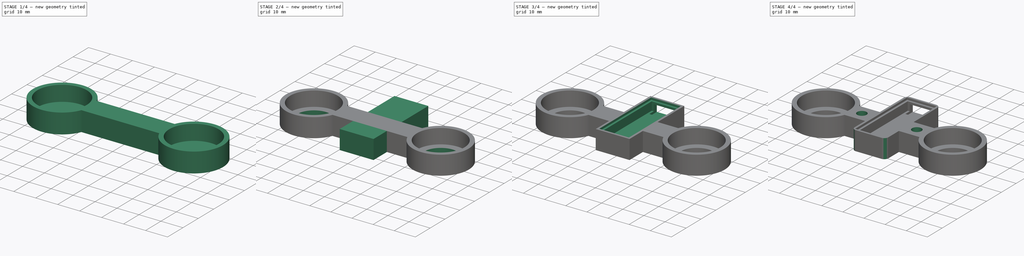
[diagram: build sequence overview — one tinted view per stage of 4, left to right]
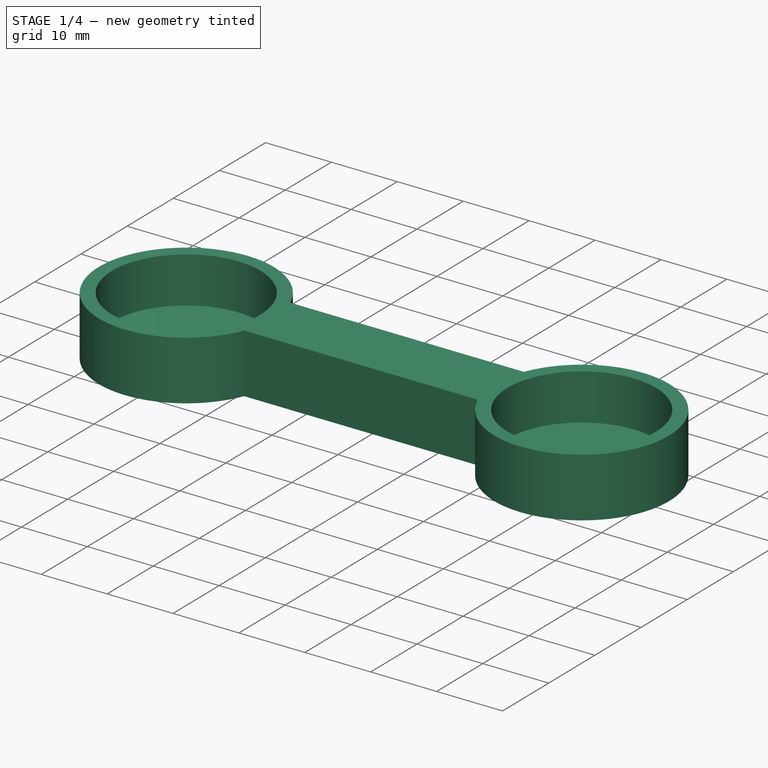
[diagram: stage 1 of 4 — iso view after this stage's code; geometry added in this stage tinted green]
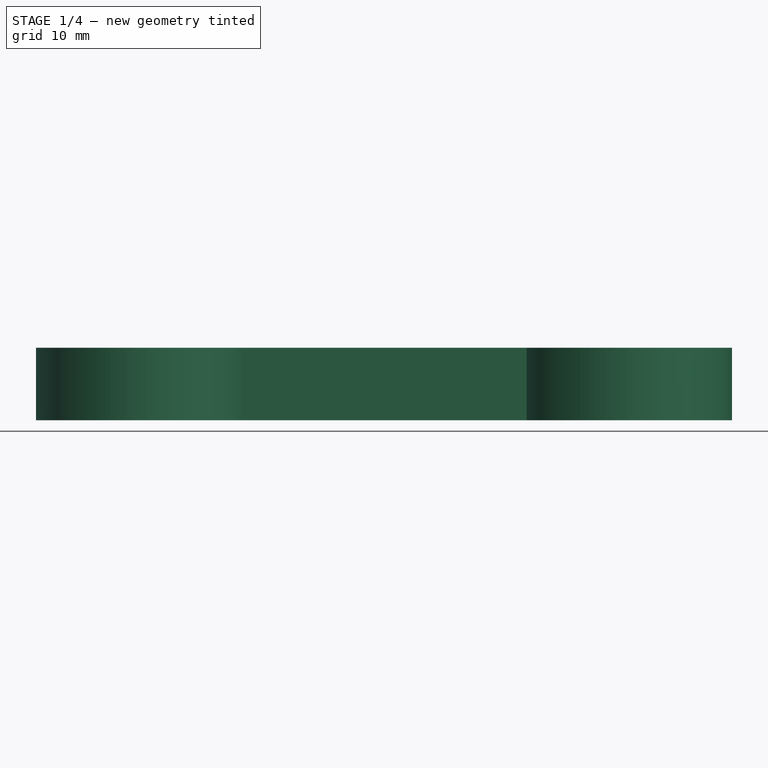
[diagram: stage 1 of 4 — front view after this stage's code; geometry added in this stage tinted green]
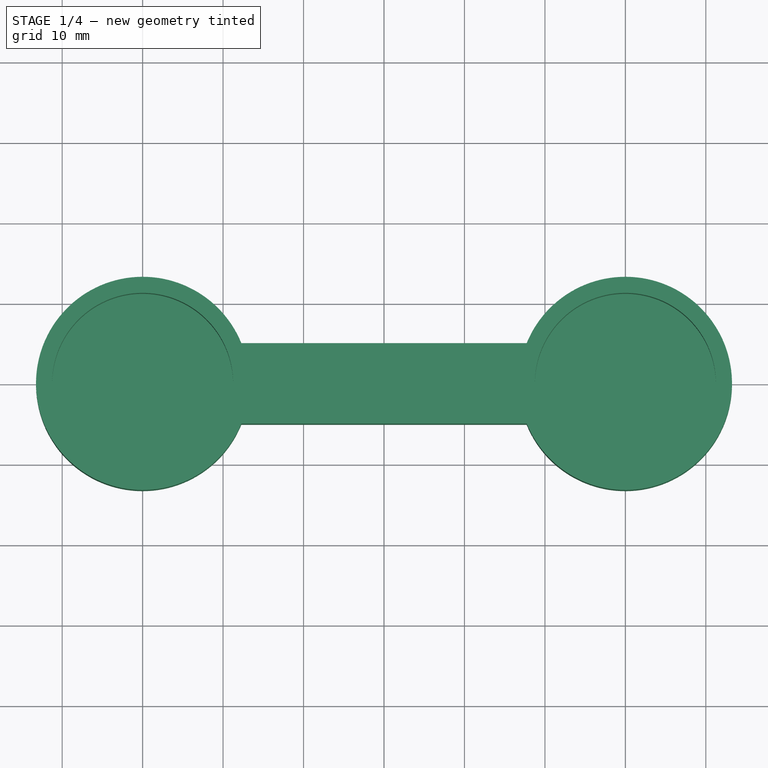
[diagram: stage 1 of 4 — top view after this stage's code; geometry added in this stage tinted green]
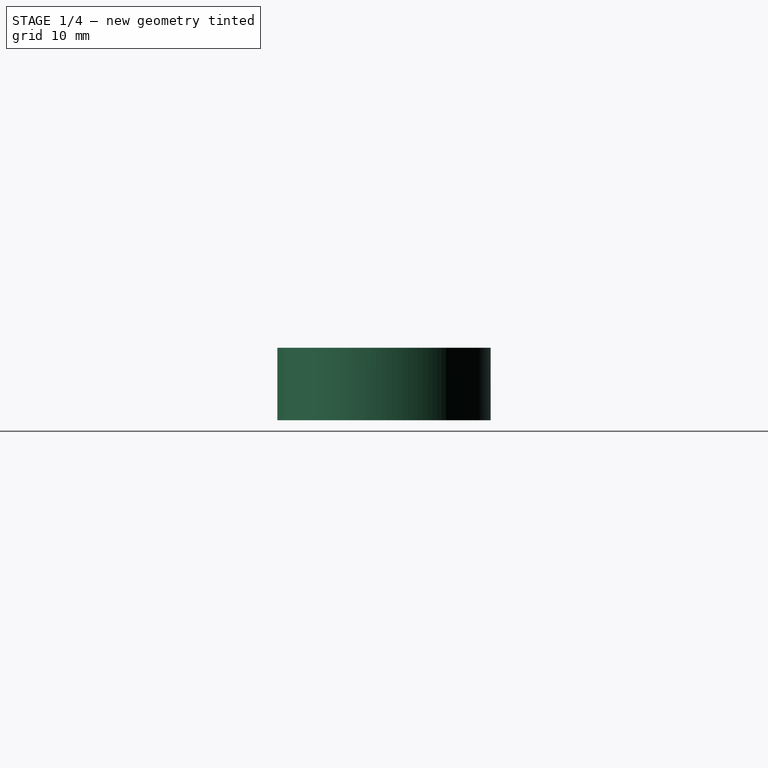
[diagram: stage 1 of 4 — right view after this stage's code; geometry added in this stage tinted green]
FCSTD DOCUMENT  (FreeCAD 1.0R38641 +678 (Git))
Label: servo-cover
License: All rights reserved
LicenseURL: https://en.wikipedia.org/wiki/All_rights_reserved
objects: Sketcher::SketchObject×8, PartDesign::Pocket×5, PartDesign::Pad×2, PartDesign::Hole×1, PartDesign::Fillet×1, PartDesign::Body×1
note: 44 computed .brp shape members not serialized (recipe doc carries the construction recipe); baked Part::Feature solids carry a one-line shape summary decoded from their .brp

FEATURE [Sketcher::SketchObject] Sketch074
  ArcFitTolerance = 0
  AttachmentSupport = -> [XY_Plane010]
  FullyConstrained = true
  MakeInternals = false
  MapMode = 5
  sketch-geometry (4):
    g0: ArcOfCircle CenterX=-0.000782384 CenterY=0 CenterZ=0 NormalX=0 NormalY=0 NormalZ=1 AngleXU=0 Radius=13.25 StartAngle=0.386942 EndAngle=5.89624
    g1: ArcOfCircle CenterX=60 CenterY=-1.33e-14 CenterZ=0 NormalX=0 NormalY=0 NormalZ=1 AngleXU=0 Radius=13.25 StartAngle=3.52853 EndAngle=9.03784
    g2: LineSegment StartX=12.2696 StartY=5 StartZ=0 EndX=47.7296 EndY=5 EndZ=0
    g3: LineSegment StartX=12.2696 StartY=-5 StartZ=0 EndX=47.7296 EndY=-5 EndZ=0
  constraints (14):
    c: Diameter(g0) = 26.5
    c: Diameter(g1) = 26.5
    c: Horizontal(g2)
    c: Horizontal(g3)
    c: Coincident(g2,g0)
    c: Coincident(g3,g0)
    c: Coincident(g2,g1)
    c: Coincident(g3,g1)
    c: DistanceX(g2,g2) = 35.46
    c: DistanceX(g3,g3) = 35.46
    c: PointOnObject(g0,g-1)
    c: Distance(g0,g2) = 5
    c: Distance(g0,g3) = 5
    c: DistanceX(g-2,g1) = 60
FEATURE [PartDesign::Pad] Pad028
  Direction = (0,0,1)
  Length = 9
  Length2 = 10
  Profile = -> Sketch074
  ReferenceAxis = -> Sketch074 [N_Axis]
  Suppressed = false
  Type = 0
FEATURE [Sketcher::SketchObject] Sketch075
  ArcFitTolerance = 0
  AttachmentSupport = -> [Pad028]
  FullyConstrained = true
  MakeInternals = false
  MapMode = 5
  Placement = pos=(0,0,9) rot=(0,0,1;0rad)
  sketch-geometry (2):
    g0: Circle CenterX=0 CenterY=0 CenterZ=0 NormalX=0 NormalY=0 NormalZ=1 AngleXU=0 Radius=11.25
    g1: Circle CenterX=60 CenterY=0 CenterZ=0 NormalX=0 NormalY=0 NormalZ=1 AngleXU=0 Radius=11.25
  constraints (5):
    c: Coincident(g0,g-1)
    c: Diameter(g0) = 22.5
    c: PointOnObject(g1,g-1)
    c: Equal(g1,g0)
    c: Distance(g1,g0) = 60
FEATURE [PartDesign::Pocket] Pocket028
  BaseFeature = -> Pad028
  Direction = (0,0,-1)
  Length = 7
  Length2 = 5
  Profile = -> Sketch075
  ReferenceAxis = -> Sketch075 [N_Axis]
  Suppressed = false
  Type = 0
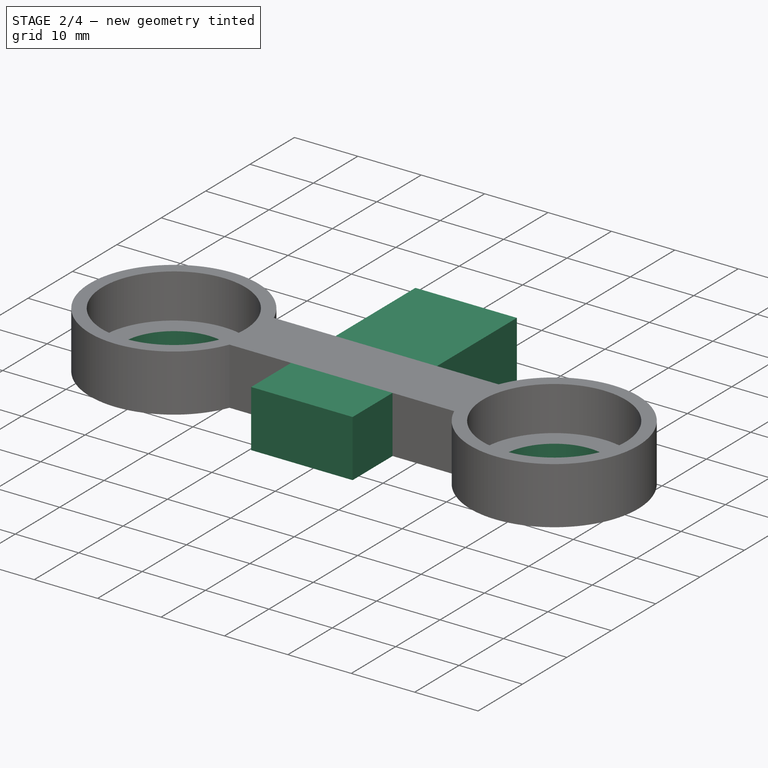
[diagram: stage 2 of 4 — iso view after this stage's code; geometry added in this stage tinted green]
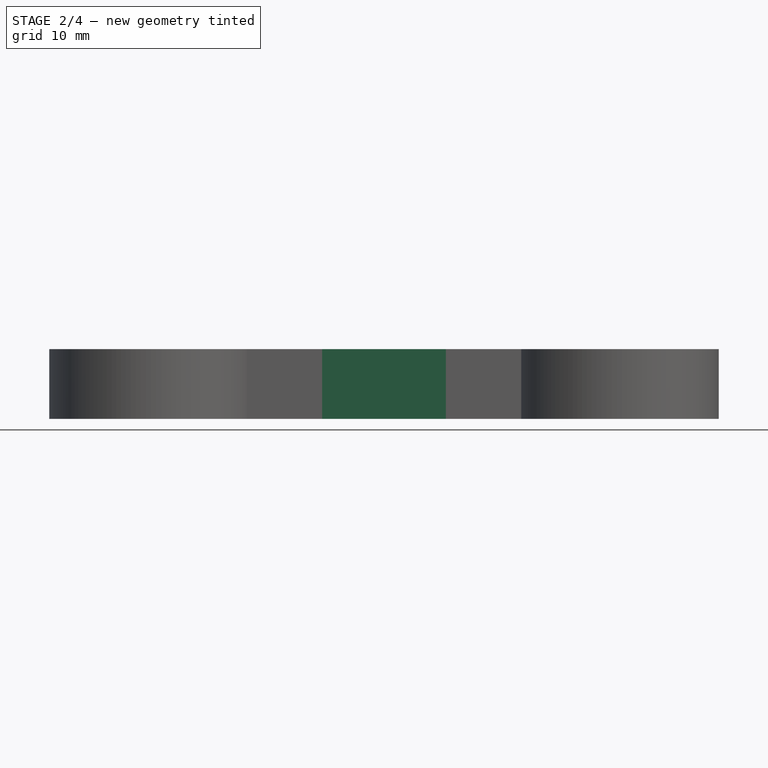
[diagram: stage 2 of 4 — front view after this stage's code; geometry added in this stage tinted green]
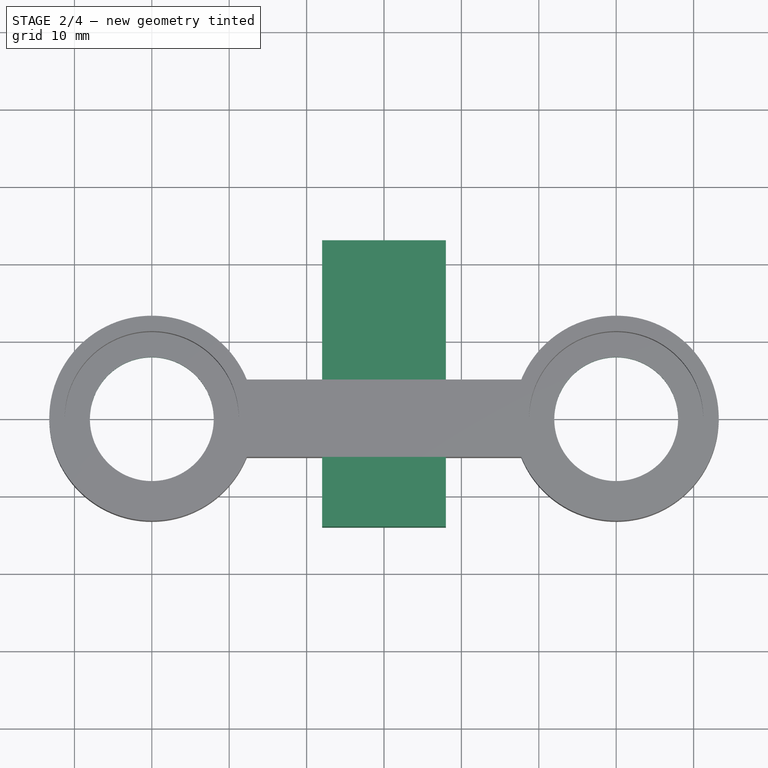
[diagram: stage 2 of 4 — top view after this stage's code; geometry added in this stage tinted green]
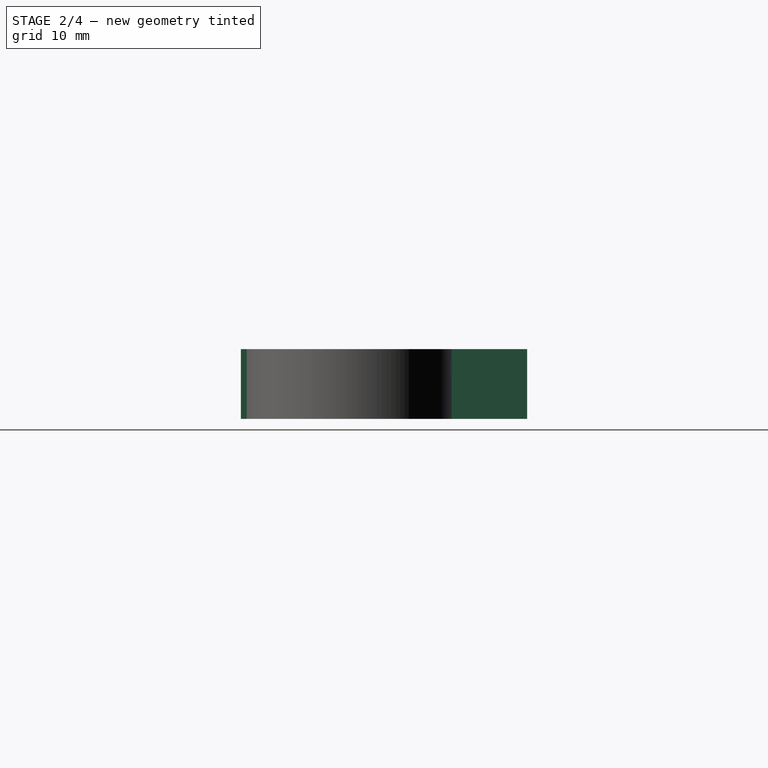
[diagram: stage 2 of 4 — right view after this stage's code; geometry added in this stage tinted green]
FEATURE [Sketcher::SketchObject] Sketch076
  ArcFitTolerance = 0
  AttachmentSupport = -> [Pocket028]
  FullyConstrained = true
  MakeInternals = false
  MapMode = 5
  Placement = pos=(0,0,0) rot=(1,0,0;3.14159rad)
  sketch-geometry (2):
    g0: Circle CenterX=0 CenterY=0 CenterZ=0 NormalX=0 NormalY=0 NormalZ=1 AngleXU=0 Radius=8
    g1: Circle CenterX=60 CenterY=0 CenterZ=0 NormalX=0 NormalY=0 NormalZ=1 AngleXU=0 Radius=8
  constraints (5):
    c: Coincident(g0,g-1)
    c: Diameter(g0) = 16
    c: PointOnObject(g1,g-1)
    c: Equal(g1,g0)
    c: Distance(g0,g1) = 60
FEATURE [PartDesign::Pocket] Pocket029
  BaseFeature = -> Pocket028
  Direction = (0,0,1)
  Length = 5
  Length2 = 5
  Profile = -> Sketch076
  ReferenceAxis = -> Sketch076 [N_Axis]
  Suppressed = false
  Type = 0
FEATURE [Sketcher::SketchObject] Sketch077
  ArcFitTolerance = 0
  AttachmentSupport = -> [Pocket029]
  FullyConstrained = true
  MakeInternals = false
  MapMode = 5
  Placement = pos=(0,0,0) rot=(1,0,0;3.14159rad)
  sketch-geometry (4):
    g0: LineSegment StartX=38 StartY=-23 StartZ=0 EndX=22 EndY=-23 EndZ=0
    g1: LineSegment StartX=22 StartY=-23 StartZ=0 EndX=22 EndY=14 EndZ=0
    g2: LineSegment StartX=22 StartY=14 StartZ=0 EndX=38 EndY=14 EndZ=0
    g3: LineSegment StartX=38 StartY=14 StartZ=0 EndX=38 EndY=-23 EndZ=0
  constraints (12):
    c: Horizontal(g0)
    c: Coincident(g1,g0)
    c: Vertical(g1)
    c: Coincident(g2,g1)
    c: Horizontal(g2)
    c: Coincident(g3,g2)
    c: Coincident(g3,g0)
    c: Vertical(g3)
    c: DistanceX(g0,g0) = 16
    c: Distance(g-1,g1) = 22
    c: DistanceY(g3,g3) = 37
    c: Distance(g-1,g2) = 14
FEATURE [PartDesign::Pad] Pad029
  BaseFeature = -> Pocket029
  Direction = (0,0,-1)
  Length = 9
  Length2 = 10
  Profile = -> Sketch077
  ReferenceAxis = -> Sketch077 [N_Axis]
  Reversed = true
  Suppressed = false
  Type = 0
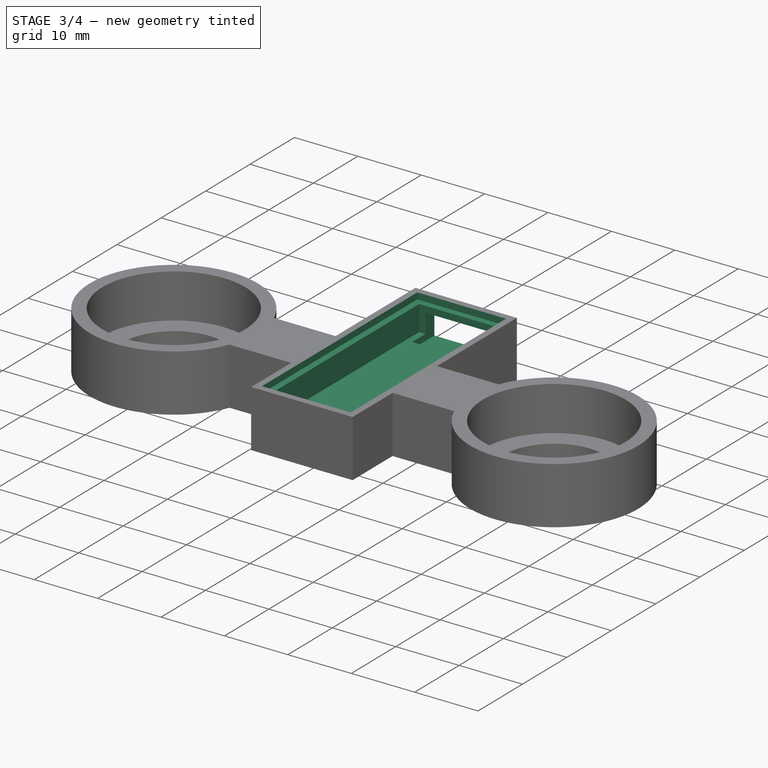
[diagram: stage 3 of 4 — iso view after this stage's code; geometry added in this stage tinted green]
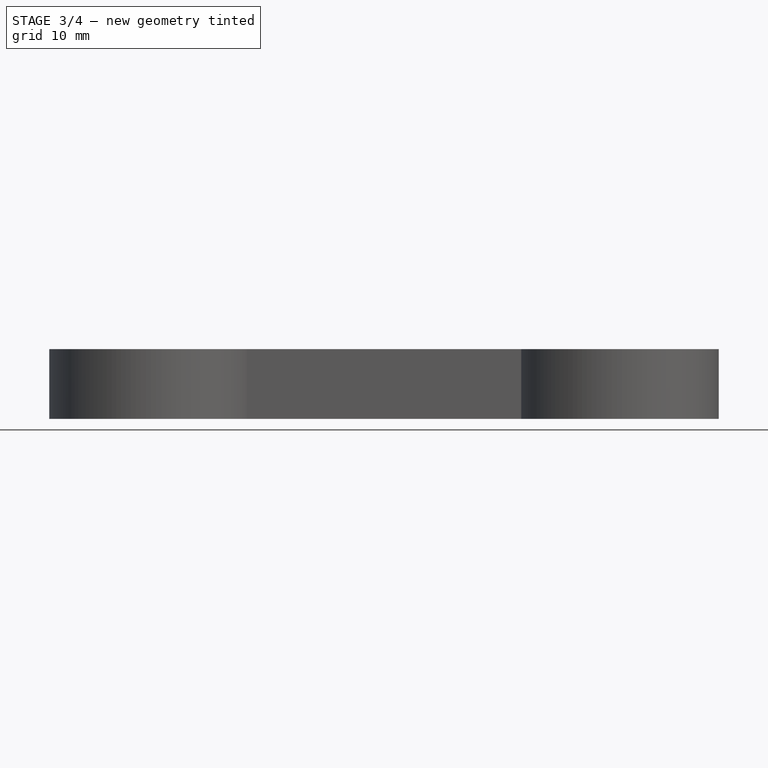
[diagram: stage 3 of 4 — front view after this stage's code; geometry added in this stage tinted green]
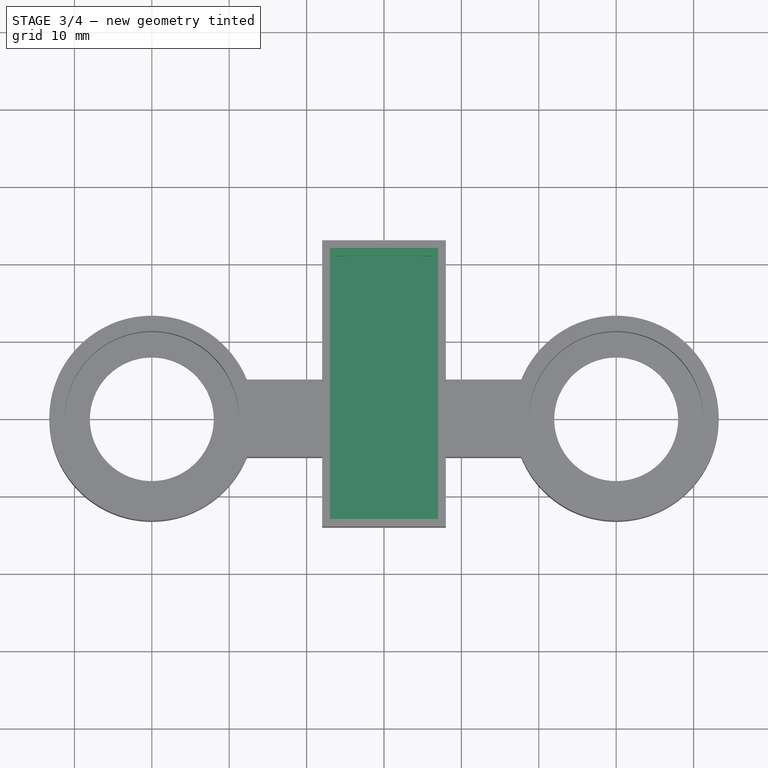
[diagram: stage 3 of 4 — top view after this stage's code; geometry added in this stage tinted green]
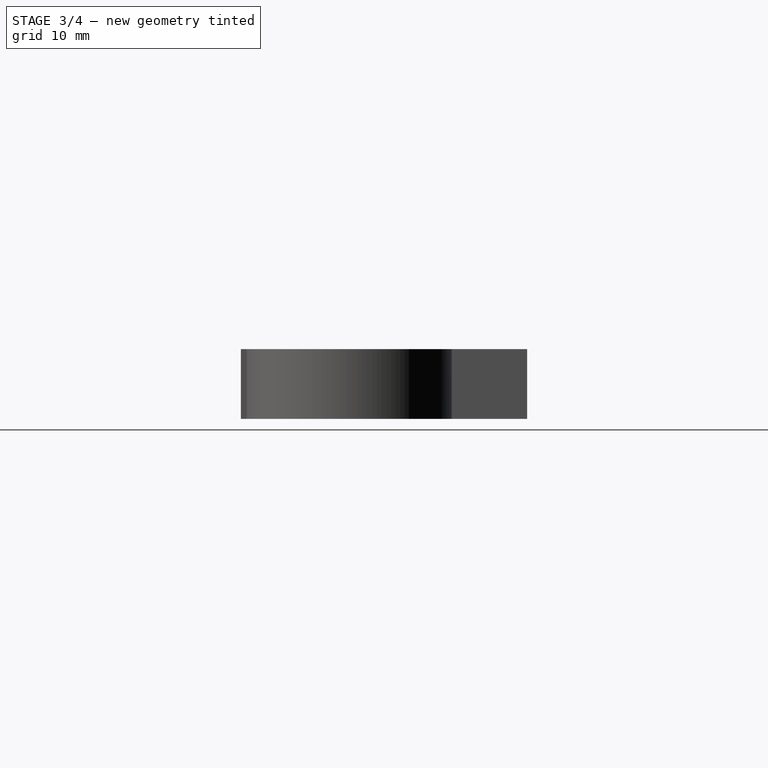
[diagram: stage 3 of 4 — right view after this stage's code; geometry added in this stage tinted green]
FEATURE [Sketcher::SketchObject] Sketch078
  ArcFitTolerance = 0
  AttachmentSupport = -> [Pad029]
  FullyConstrained = true
  MakeInternals = false
  MapMode = 5
  Placement = pos=(0,0,9) rot=(0,0,1;0rad)
  sketch-geometry (4):
    g0: LineSegment StartX=23 StartY=22 StartZ=0 EndX=37 EndY=22 EndZ=0
    g1: LineSegment StartX=37 StartY=22 StartZ=0 EndX=37 EndY=-13 EndZ=0
    g2: LineSegment StartX=37 StartY=-13 StartZ=0 EndX=23 EndY=-13 EndZ=0
    g3: LineSegment StartX=23 StartY=-13 StartZ=0 EndX=23 EndY=22 EndZ=0
  constraints (12):
    c: Coincident(g0,g1)
    c: Coincident(g1,g2)
    c: Coincident(g2,g3)
    c: Coincident(g3,g0)
    c: Horizontal(g0)
    c: Horizontal(g2)
    c: Vertical(g1)
    c: Vertical(g3)
    c: Distance(g-1,g3) = 23
    c: DistanceX(g2,g2) = 14
    c: DistanceY(g1,g1) = 35
    c: Distance(g-1,g0) = 22
FEATURE [PartDesign::Pocket] Pocket030
  BaseFeature = -> Pad029
  Direction = (0,0,-1)
  Length = 1
  Length2 = 5
  Profile = -> Sketch078
  ReferenceAxis = -> Sketch078 [N_Axis]
  Suppressed = false
  Type = 0
FEATURE [Sketcher::SketchObject] Sketch079
  ArcFitTolerance = 0
  AttachmentSupport = -> [Pocket030]
  FullyConstrained = true
  MakeInternals = false
  MapMode = 5
  Placement = pos=(0,0,9) rot=(0,0,1;0rad)
  sketch-geometry (4):
    g0: LineSegment StartX=24 StartY=21 StartZ=0 EndX=36 EndY=21 EndZ=0
    g1: LineSegment StartX=36 StartY=21 StartZ=0 EndX=36 EndY=-12 EndZ=0
    g2: LineSegment StartX=36 StartY=-12 StartZ=0 EndX=24 EndY=-12 EndZ=0
    g3: LineSegment StartX=24 StartY=-12 StartZ=0 EndX=24 EndY=21 EndZ=0
  constraints (12):
    c: Coincident(g0,g1)
    c: Coincident(g1,g2)
    c: Coincident(g2,g3)
    c: Coincident(g3,g0)
    c: Horizontal(g0)
    c: Horizontal(g2)
    c: Vertical(g1)
    c: Vertical(g3)
    c: Distance(g-1,g3) = 24
    c: Distance(g2) = 12
    c: DistanceY(g1,g1) = 33
    c: Distance(g-1,g0) = 21
FEATURE [PartDesign::Pocket] Pocket031
  BaseFeature = -> Pocket030
  Direction = (0,0,-1)
  Length = 5
  Length2 = 5
  Profile = -> Sketch079
  ReferenceAxis = -> Sketch079 [N_Axis]
  Suppressed = false
  Type = 0
FEATURE [Sketcher::SketchObject] Sketch080
  ArcFitTolerance = 0
  AttachmentSupport = -> [Pocket031]
  FullyConstrained = true
  MakeInternals = false
  MapMode = 5
  Placement = pos=(0,23,0) rot=(0,0.707107,0.707107;3.14159rad)
  sketch-geometry (4):
    g0: LineSegment StartX=-35 StartY=7 StartZ=0 EndX=-25 EndY=7 EndZ=0
    g1: LineSegment StartX=-25 StartY=7 StartZ=0 EndX=-25 EndY=3 EndZ=0
    g2: LineSegment StartX=-25 StartY=3 StartZ=0 EndX=-35 EndY=3 EndZ=0
    g3: LineSegment StartX=-35 StartY=3 StartZ=0 EndX=-35 EndY=7 EndZ=0
  constraints (12):
    c: Coincident(g0,g1)
    c: Coincident(g1,g2)
    c: Coincident(g2,g3)
    c: Coincident(g3,g0)
    c: Horizontal(g0)
    c: Horizontal(g2)
    c: Vertical(g1)
    c: Vertical(g3)
    c: DistanceX(g0,g0) = 10
    c: DistanceY(g1,g1) = 4
    c: Distance(g-1,g1) = 25
    c: Distance(g-1,g2) = 3
FEATURE [PartDesign::Pocket] Pocket032
  BaseFeature = -> Pocket031
  Direction = (0,-1,2e-16)
  Length = 5
  Length2 = 5
  Profile = -> Sketch080
  ReferenceAxis = -> Sketch080 [N_Axis]
  Suppressed = false
  Type = 0
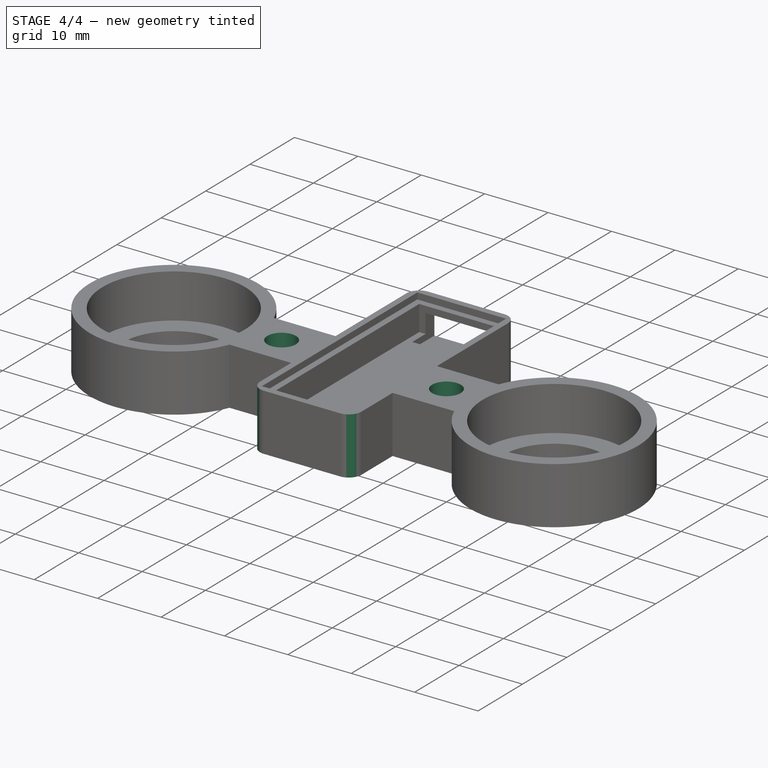
[diagram: stage 4 of 4 — iso view after this stage's code; geometry added in this stage tinted green]
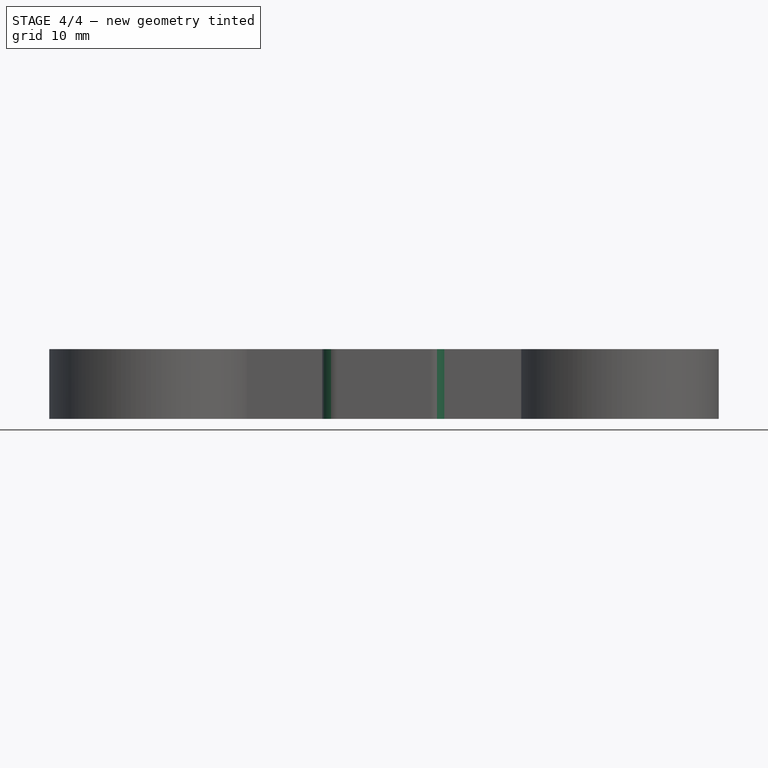
[diagram: stage 4 of 4 — front view after this stage's code; geometry added in this stage tinted green]
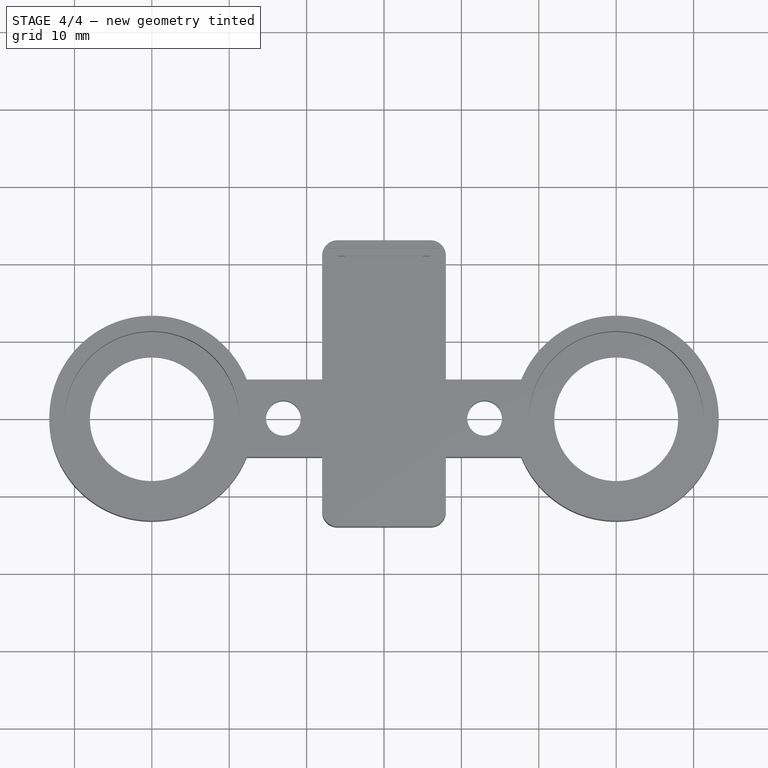
[diagram: stage 4 of 4 — top view after this stage's code; geometry added in this stage tinted green]
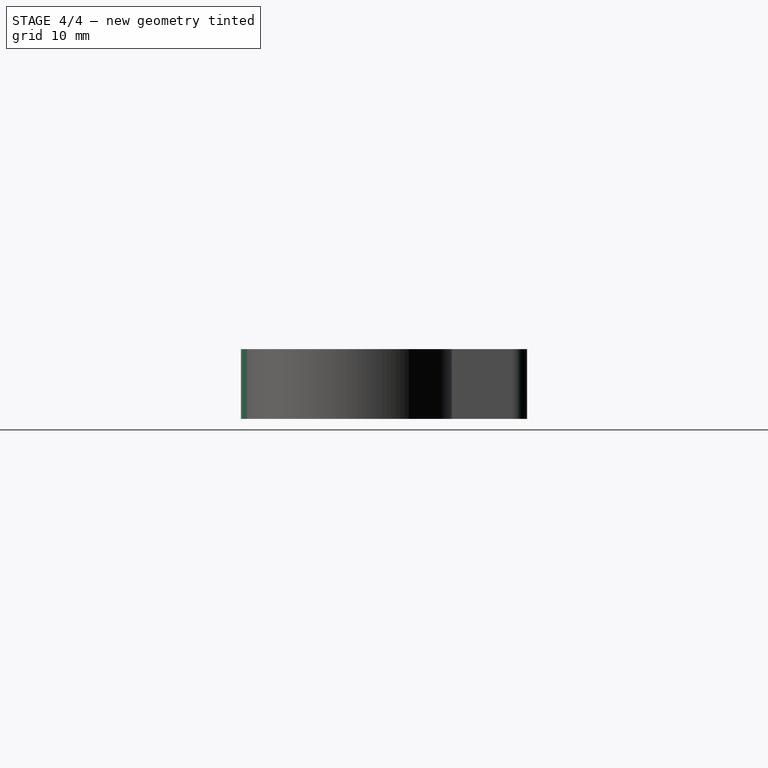
[diagram: stage 4 of 4 — right view after this stage's code; geometry added in this stage tinted green]
FEATURE [Sketcher::SketchObject] Sketch081
  ArcFitTolerance = 0
  AttachmentSupport = -> [Pocket032]
  FullyConstrained = true
  MakeInternals = false
  MapMode = 5
  Placement = pos=(0,0,0) rot=(1,0,0;3.14159rad)
  sketch-geometry (2):
    g0: Circle CenterX=17 CenterY=0 CenterZ=0 NormalX=0 NormalY=0 NormalZ=1 AngleXU=0 Radius=2.25
    g1: Circle CenterX=43 CenterY=0 CenterZ=0 NormalX=0 NormalY=0 NormalZ=1 AngleXU=0 Radius=2.25
  constraints (6):
    c: PointOnObject(g0,g-1)
    c: Diameter(g0) = 4.5
    c: PointOnObject(g1,g-1)
    c: DistanceX(g-2,g0) = 17
    c: Distance(g0,g1) = 26
    c: Equal(g0,g1)
FEATURE [PartDesign::Hole] Hole007
  BaseFeature = -> Pocket032
  CustomThreadClearance = 0
  Depth = 25
  DepthType = 0
  Diameter = 4.5
  DrillForDepth = false
  DrillPoint = 1
  DrillPointAngle = 118
  HoleCutCountersinkAngle = 90
  HoleCutCustomValues = false
  HoleCutDepth = 4
  HoleCutDiameter = 7.5
  HoleCutType = 1
  ModelThread = false
  Profile = -> Sketch081
  Suppressed = false
  Tapered = false
  TaperedAngle = 90
  ThreadClass = 0
  ThreadDepth = 25
  ThreadDepthType = 0
  ThreadDirection = 0
  ThreadFit = 0
  ThreadSize = 0
  ThreadType = 0
  Threaded = false
  UseCustomThreadClearance = false
FEATURE [PartDesign::Fillet] Fillet006
  Base = -> Hole007 [Edge45,Edge19,Edge21,Edge52]
  BaseFeature = -> Hole007
  Radius = 2
  SupportTransform = false
  Suppressed = false
  UseAllEdges = false
FEATURE [PartDesign::Body] Body010  label="servo-cover"
  AllowCompound = false
  Group = -> [Sketch074,Pad028,Sketch075,Pocket028,Sketch076,Pocket029,Sketch077,Pad029,Sketch078,Pocket030,Sketch079,Pocket031,Sketch080,Pocket032,Sketch081,Hole007,Fillet006]
  Origin = -> Origin010
  Placement = pos=(1.2e-14,120,46) rot=(0.707107,-0.707107,0;3.14159rad)
  Tip = -> Fillet006
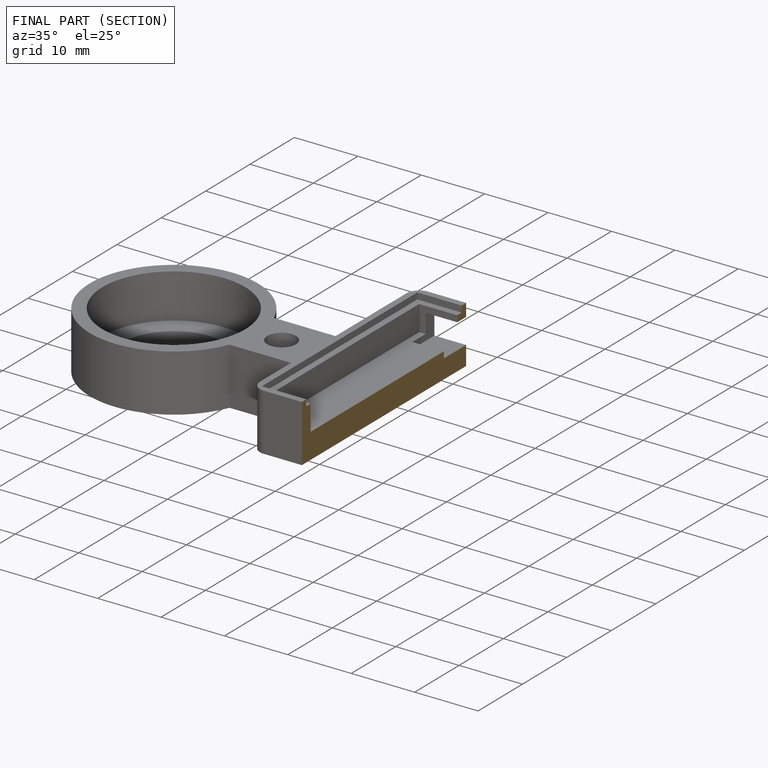
[diagram: finished part — half-section view (interior)]
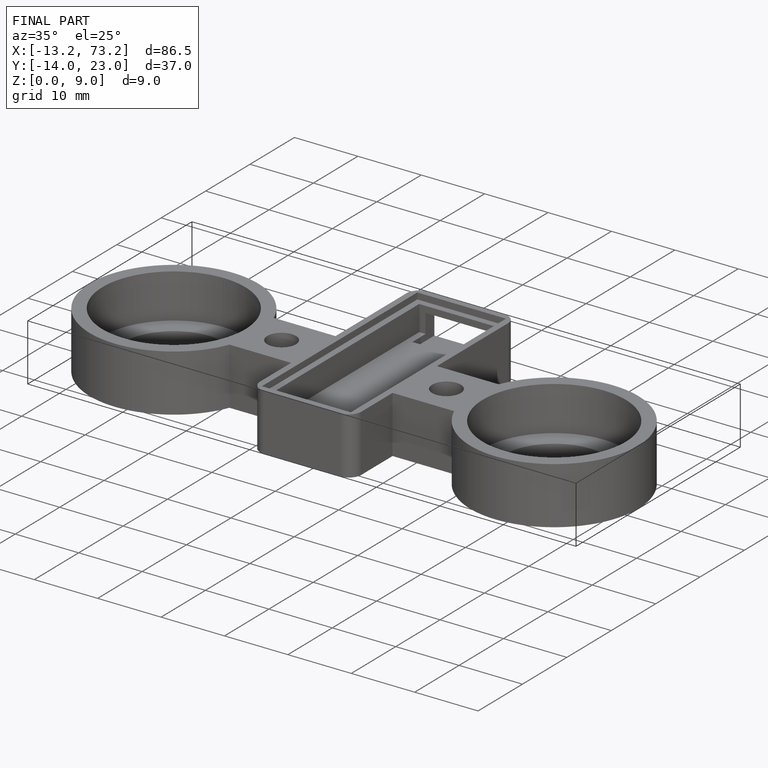
[diagram: finished part — iso view with bounding-box wireframe]
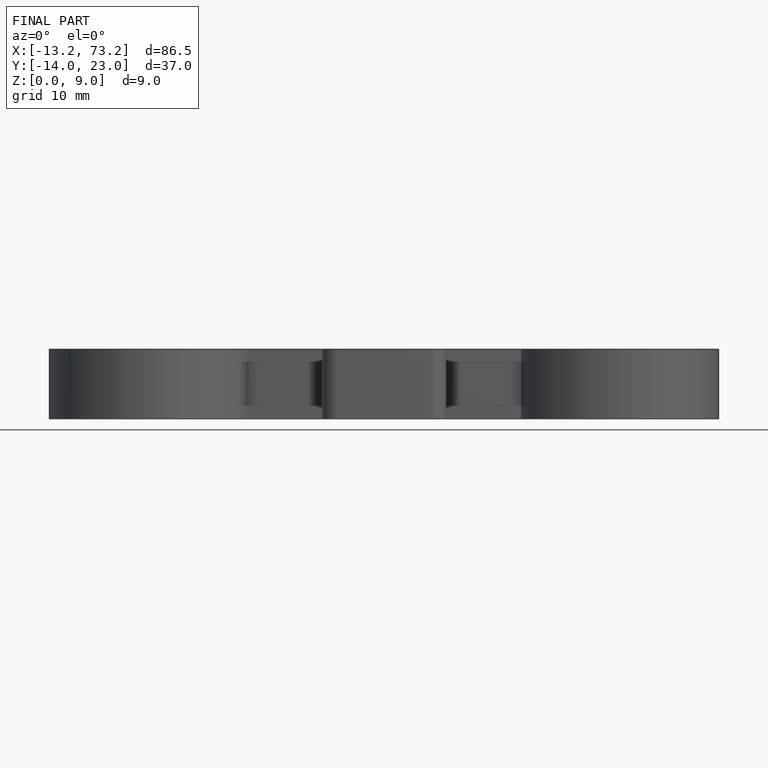
[diagram: finished part — front view with bounding-box wireframe]
